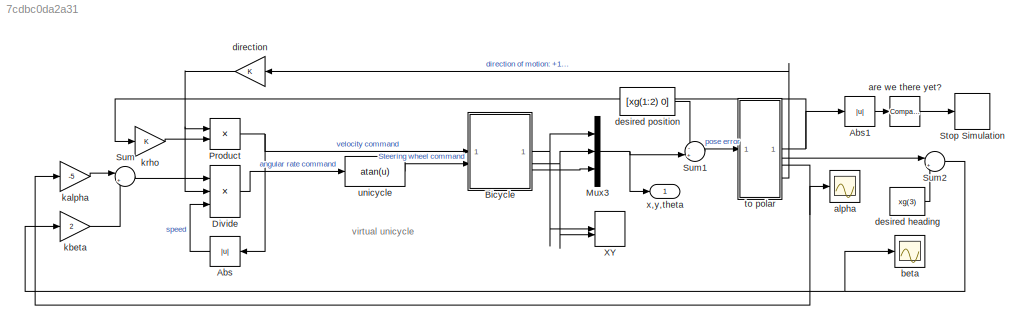
MODEL slx_7cdbc0da2a31
KIND model
CONFIG AbsTol = auto
CONFIG EnableMultiTasking = on
CONFIG FixedStep = auto
CONFIG InitFcn = if exist('x0')\n  assert(length(x0) == 3, 'x0 must be a 3-vector');\nelse\n  x0 = [9 5 0];\n  msgbox(sprintf('x0 not defined in workspace, setting it to [%g %g %g]\n', x0));\nend\nif exist('xg')\n  assert(length(xg) == 3, 'xg must be a 3-vector');\nelse\n  xg = [5 5 pi/2];\n  msgbox(sprintf('xg not defined in workspace, setting it to [%g %g %g]\n', xg));\nend\n% clean up old vehicle icons\nset(0, 'ShowHiddenHa...<+82ch>
CONFIG MaxStep = 0.05
CONFIG MinStep = auto
CONFIG RelTol = 1e-3
CONFIG SampleTimeConstraint = Unconstrained
CONFIG SolverName = ode45
CONFIG StartTime = 0.0
CONFIG StopFcn = % update the XY scope\nset(0, 'ShowHiddenHandles', 'on')\nfig = findobj('name', 'XY');\nax = findobj(fig, 'type', 'axes');\naxes(ax)\ngrid on\nhold on\nplot_vehicle(x0, 'r', 'Tag', 'vehicle')\nplot_vehicle(xg, 'b', 'Tag', 'vehicle')\nhold off\nset(0, 'ShowHiddenHandles', 'off')
CONFIG StopTime = 20.0
BLOCK [Abs] Abs
  SaturateOnIntegerOverflow = off
BLOCK [Abs] Abs1
  SaturateOnIntegerOverflow = off
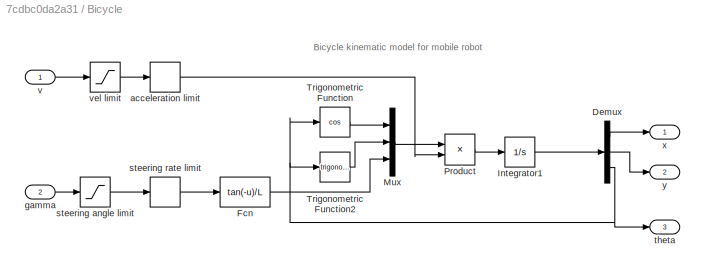
BLOCK [SubSystem] Bicycle
  AncestorBlock = roblocks/Vehicles/Bicycle
BLOCK [Demux] Bicycle/Demux
  Outputs = 3
BLOCK [Fcn] Bicycle/Fcn
  Expr = tan(-u)/L
BLOCK [Integrator] Bicycle/Integrator1
  InitialCondition = x0
BLOCK [Mux] Bicycle/Mux
  DisplayOption = bar
  Inputs = 3
BLOCK [Product] Bicycle/Product
  RndMeth = Zero
BLOCK [Trigonometry] Bicycle/Trigonometric Function
  Operator = cos
BLOCK [Trigonometry] Bicycle/Trigonometric Function2
BLOCK [RateLimiter] Bicycle/acceleration limit
  FallingSlewLimit = -accel
  RisingSlewLimit = accel
  SampleTimeMode = inherited
BLOCK [Inport] Bicycle/gamma
  Port = 2
BLOCK [Saturate] Bicycle/steering angle limit
  LowerLimit = -alim
  UpperLimit = alim
BLOCK [RateLimiter] Bicycle/steering rate limit
  FallingSlewLimit = -steer_rate
  RisingSlewLimit = steer_rate
  SampleTimeMode = inherited
BLOCK [Outport] Bicycle/theta
  Port = 3
  VectorParamsAs1DForOutWhenUnconnected = off
BLOCK [Inport] Bicycle/v
BLOCK [Saturate] Bicycle/vel limit
  LowerLimit = -vlim
  UpperLimit = vlim
BLOCK [Outport] Bicycle/x
  VectorParamsAs1DForOutWhenUnconnected = off
BLOCK [Outport] Bicycle/y
  Port = 2
  VectorParamsAs1DForOutWhenUnconnected = off
BLOCK [Product] Divide
  Inputs = **/
BLOCK [Mux] Mux3
  DisplayOption = bar
  Inputs = 3
BLOCK [Product] Product
  RndMeth = Zero
BLOCK [Stop] Stop Simulation
BLOCK [Sum] Sum
  Inputs = |++
BLOCK [Sum] Sum1
  Inputs = -+|
BLOCK [Sum] Sum2
  Inputs = |++
BLOCK [Record] XY
  CompatibilityTag = XY
  FileSettingsInternal = {"entries":[{"content":{"excelSettings":{"content":{},"type":"Streamout.ExcelSettings"}},"type":"Streamout.FileSettingStorage","uuid":""}],"packageUris":["http:\/\/schema.mathworks.com\/mf0\/streamout_blocks\/R2020a"],"version":"1.0"}
  Layout = [1 1]
  SignalsInternal = {"entries":[{"content":{"signals":[{"content":{"blockPath":[],"dimensions":[1],"domain":"","lineColor":"#a2142f","plots":[1],"port":1,"signalID":8,"signalName":"Bicycle:1"},"type":"RecordBlkView.Signal","uuid":""},{"content":{"blockPath":[],"dimensions":[1],"domain":"","lineColor":"#139fff","plots":[1],"port":2,"signalID":11,"signalName":"Bicycle:2"},"type":"RecordBlkView.Signal","uuid":""}]},"typ...<+139ch>
  VisualizationBindings = {"xyplotplugin":{"info":[{"series":[{"bindingParametersList":[{"parameter":"X-Axis","signalID":8,"signalName":"Bicycle:1"},{"parameter":"Y-Axis","signalID":11,"signalName":"Bicycle:2"}],"seriesID":62662}],"subplotID":1}]}}
  st = -1
BLOCK [Scope] alpha
  Floating = off
  NumInputPorts = 1
  ScopeSpecificationString = Simulink.scopes.TimeScopeBlockCfg('CurrentConfiguration', extmgr.ConfigurationSet(extmgr.Configuration('Core','General UI',true),extmgr.Configuration('Core','Source UI',true),extmgr.Configuration('Sources','WiredSimulink',true,'DataLoggingSaveFormat','StructureWithTime','DataLoggingDecimation','1'),extmgr.Configuration('Visuals','Time Domain',true,'SerializedDisplays',{struct('MinYLimReal','-1.846...<+1708ch>
BLOCK [Reference] are we there yet?  REF=simulink/Logic and Bit
Operations/Compare
To Constant
  SourceBlock = simulink/Logic and Bit\nOperations/Compare\nTo Constant
  SourceType = Compare To Constant
BLOCK [Scope] beta
  Floating = off
  NumInputPorts = 1
  ScopeSpecificationString = Simulink.scopes.TimeScopeBlockCfg('CurrentConfiguration', extmgr.ConfigurationSet(extmgr.Configuration('Core','General UI',true),extmgr.Configuration('Core','Source UI',true),extmgr.Configuration('Sources','WiredSimulink',true,'DataLoggingVariableName','ScopeData2','DataLoggingSaveFormat','StructureWithTime','DataLoggingDecimation','1'),extmgr.Configuration('Visuals','Time Domain',true,'Serialized...<+1726ch>
BLOCK [Constant] desired heading
  Value = xg(3)
BLOCK [Constant] desired position
  Value = [xg(1:2) 0]
BLOCK [Gain] direction
BLOCK [Gain] kalpha
  Gain = -5
BLOCK [Gain] kbeta
  Gain = 2
BLOCK [Gain] krho
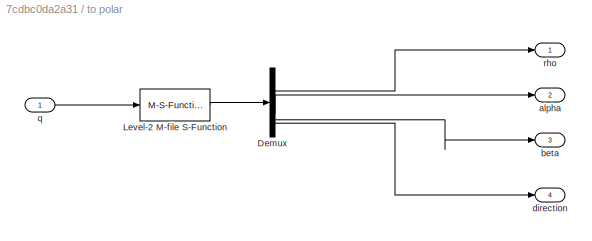
BLOCK [SubSystem] to polar
BLOCK [Demux] to polar/Demux
BLOCK [M-S-Function] to polar/Level-2 M-file S-Function
  FunctionName = polar_sfunc
BLOCK [Outport] to polar/alpha
  Port = 2
  VectorParamsAs1DForOutWhenUnconnected = off
BLOCK [Outport] to polar/beta
  Port = 3
  VectorParamsAs1DForOutWhenUnconnected = off
BLOCK [Outport] to polar/direction
  Port = 4
  VectorParamsAs1DForOutWhenUnconnected = off
BLOCK [Inport] to polar/q
BLOCK [Outport] to polar/rho
  VectorParamsAs1DForOutWhenUnconnected = off
BLOCK [Fcn] unicycle 
  Expr = atan(u)
BLOCK [Outport] x,y,theta
  VectorParamsAs1DForOutWhenUnconnected = off
ANNOTATION (root): virtual unicycle
ANNOTATION Bicycle: Bicycle kinematic model for mobile robot
LINE Abs1:1 -> are we there yet?:1
LINE Abs:1 -> Divide:3
NET Bicycle:1 -> Mux3:1, XY:1
NET Bicycle:2 -> Mux3:2, XY:2
LINE Bicycle:3 -> Mux3:3
LINE Divide:1 -> unicycle :1
NET Mux3:1 -> Sum1:2, x,y,theta:1
NET Product:1 -> Abs:1, Bicycle:1
LINE Sum1:1 -> to polar:1
NET Sum2:1 -> beta:1, kbeta:1
LINE Sum:1 -> Divide:1
LINE are we there yet?:1 -> Stop Simulation:1
LINE desired heading:1 -> Sum2:2
LINE desired position:1 -> Sum1:1
NET direction:1 -> Divide:2, Product:1
LINE kalpha:1 -> Sum:1
LINE kbeta:1 -> Sum:2
LINE krho:1 -> Product:2
LINE to polar/Demux:1 -> to polar/rho:1
LINE to polar/Demux:2 -> to polar/alpha:1
LINE to polar/Demux:3 -> to polar/beta:1
LINE to polar/Demux:4 -> to polar/direction:1
LINE to polar/Level-2 M-file S-Function:1 -> to polar/Demux:1
LINE to polar/q:1 -> to polar/Level-2 M-file S-Function:1
NET to polar:1 -> Abs1:1, krho:1
NET to polar:2 -> alpha:1, kalpha:1
LINE to polar:3 -> Sum2:1
LINE to polar:4 -> direction:1
LINE unicycle :1 -> Bicycle:2
note: NET lines group one-source signal fan-out (src -> all destinations, sorted); 1:1 wires keep LINE
